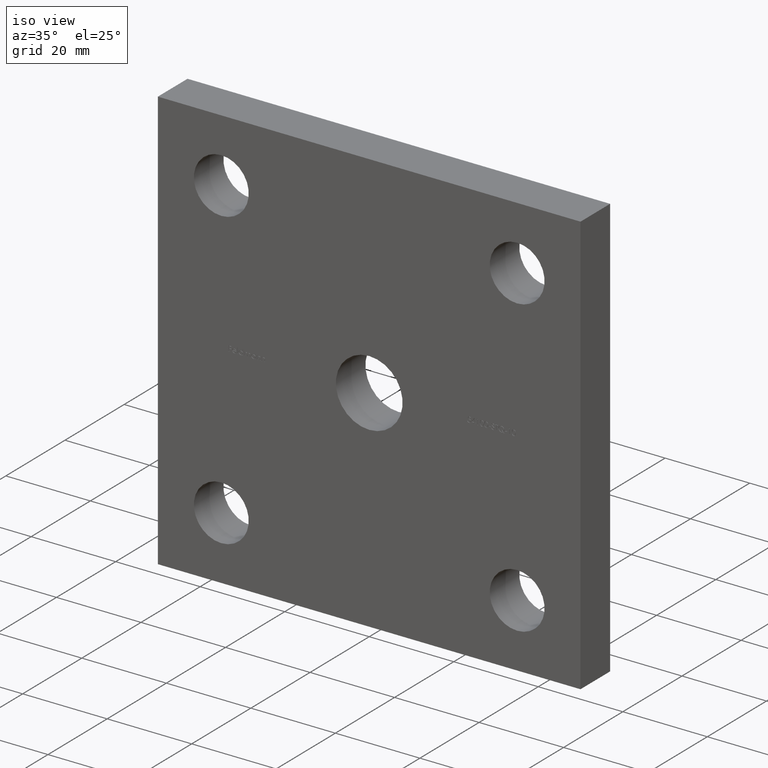
[diagram: clean part render]
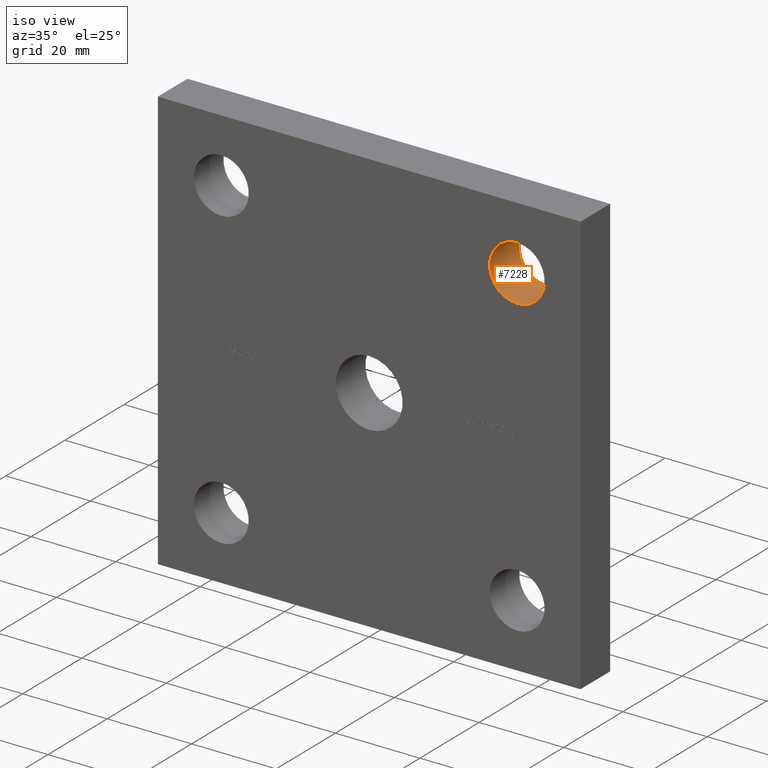
[diagram: same view with one face highlighted and labeled with its STEP entity id]
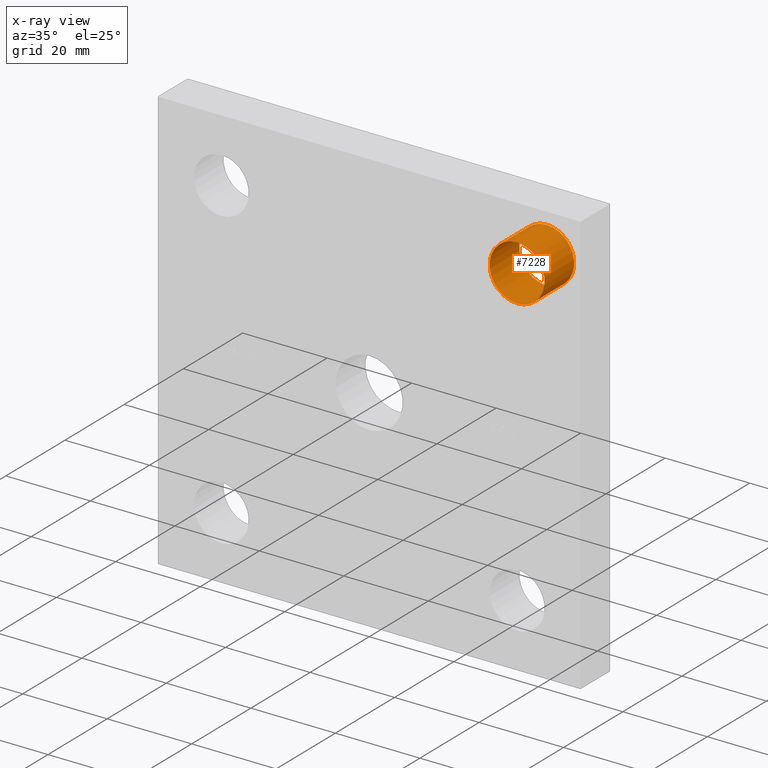
[diagram: x-ray of the same camera — body ghosted, the highlighted face saturated]
A machine part, iso view. The second image highlights one B-rep face of the part: STEP entity #7228.
The next image is the same camera in x-ray: the body ghosted, the highlighted face saturated — about 0% of this face is hidden behind the body in this view.
In plain terms, the highlighted cylindrical surface (bore or boss wall) has radius 6.5 mm, axis along (-0, 1, -0).
Its self-contained STEP definition (entity closure, byte-faithful):
#619 = DIRECTION ( 'NONE',  ( -0.000000000000000000, 1.000000000000000000, -0.000000000000000000 ) ) ;
#1796 = EDGE_CURVE ( 'NONE', #4928, #4928, #9020, .T. ) ;
#2004 = AXIS2_PLACEMENT_3D ( 'NONE', #11277, #619, #6061 ) ;
#2615 = DIRECTION ( 'NONE',  ( 0.000000000000000000, 0.000000000000000000, 1.000000000000000000 ) ) ;
#2662 = CARTESIAN_POINT ( 'NONE',  ( 35.00000000000000000, 0.000000000000000000, 35.00000000000000000 ) ) ;
#2862 = CARTESIAN_POINT ( 'NONE',  ( 35.00000000000000000, 10.00000000000000000, 35.00000000000000000 ) ) ;
#2947 = AXIS2_PLACEMENT_3D ( 'NONE', #2662, #9065, #2615 ) ;
#4928 = VERTEX_POINT ( 'NONE', #10583 ) ;
#5354 = ORIENTED_EDGE ( 'NONE', *, *, #7652, .F. ) ;
#5963 = AXIS2_PLACEMENT_3D ( 'NONE', #2862, #11417, #7254 ) ;
#6061 = DIRECTION ( 'NONE',  ( 0.000000000000000000, 0.000000000000000000, 1.000000000000000000 ) ) ;
#6995 = FACE_OUTER_BOUND ( 'NONE', #7378, .T. ) ;
#7228 = ADVANCED_FACE ( 'NONE', ( #12041, #6995 ), #8161, .F. ) ;
#7254 = DIRECTION ( 'NONE',  ( 0.000000000000000000, 0.000000000000000000, 1.000000000000000000 ) ) ;
#7378 = EDGE_LOOP ( 'NONE', ( #9971 ) ) ;
#7652 = EDGE_CURVE ( 'NONE', #10836, #10836, #13316, .T. ) ;
#8161 = CYLINDRICAL_SURFACE ( 'NONE', #2004, 6.499999999999999112 ) ;
#9020 = CIRCLE ( 'NONE', #5963, 6.499999999999999112 ) ;
#9065 = DIRECTION ( 'NONE',  ( 0.000000000000000000, 1.000000000000000000, 0.000000000000000000 ) ) ;
#9971 = ORIENTED_EDGE ( 'NONE', *, *, #1796, .T. ) ;
#10312 = EDGE_LOOP ( 'NONE', ( #5354 ) ) ;
#10583 = CARTESIAN_POINT ( 'NONE',  ( 35.00000000000000000, 10.00000000000000000, 41.50000000000000000 ) ) ;
#10836 = VERTEX_POINT ( 'NONE', #12892 ) ;
#11277 = CARTESIAN_POINT ( 'NONE',  ( 35.00000000000000000, 0.000000000000000000, 35.00000000000000000 ) ) ;
#11417 = DIRECTION ( 'NONE',  ( 0.000000000000000000, 1.000000000000000000, 0.000000000000000000 ) ) ;
#12041 = FACE_OUTER_BOUND ( 'NONE', #10312, .T. ) ;
#12892 = CARTESIAN_POINT ( 'NONE',  ( 35.00000000000000000, 0.000000000000000000, 41.50000000000000000 ) ) ;
#13316 = CIRCLE ( 'NONE', #2947, 6.499999999999999112 ) ;